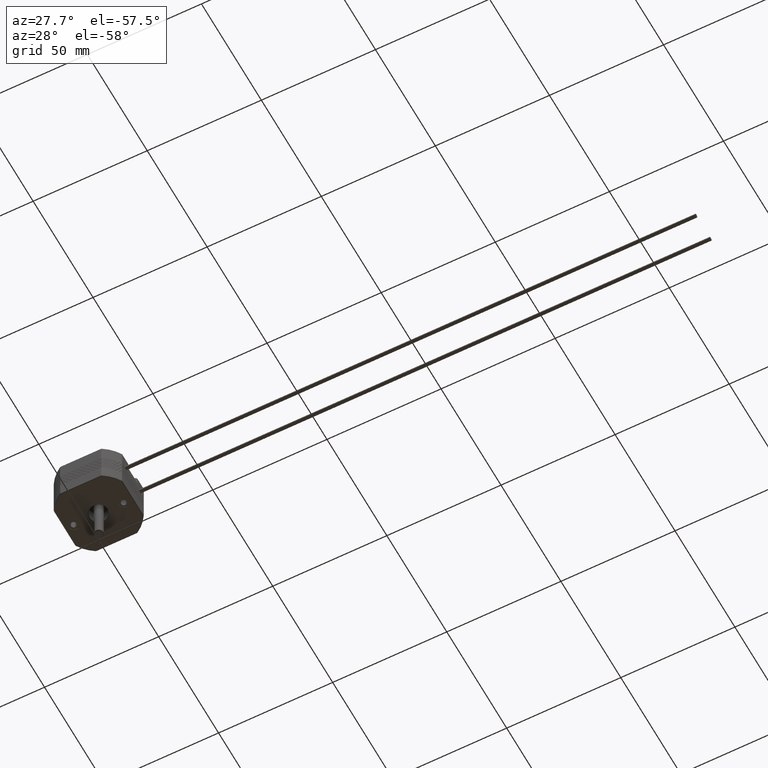
[diagram: clean part render]
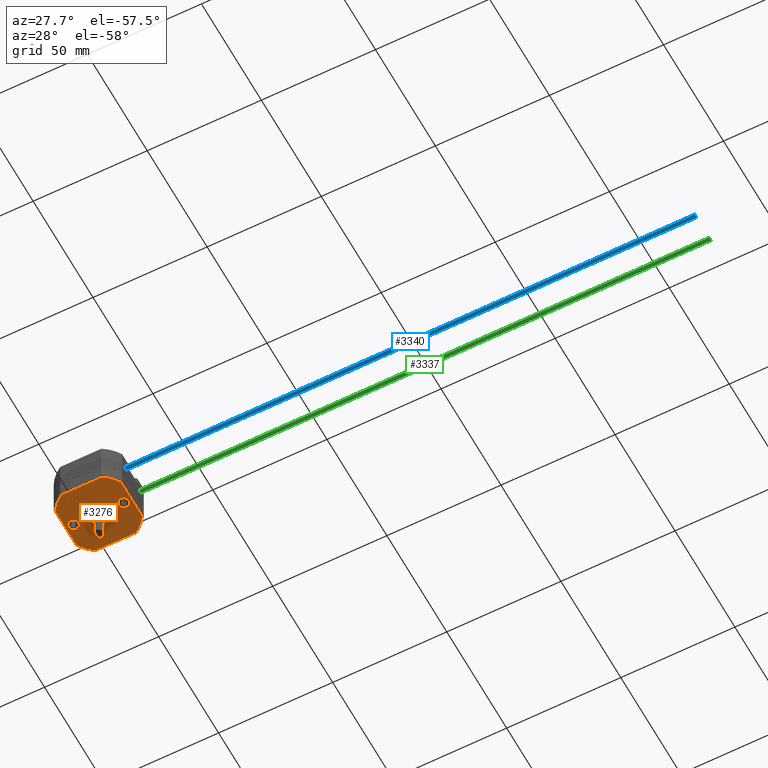
[diagram: same view with three faces highlighted in distinct colors, each labeled with its STEP entity id]
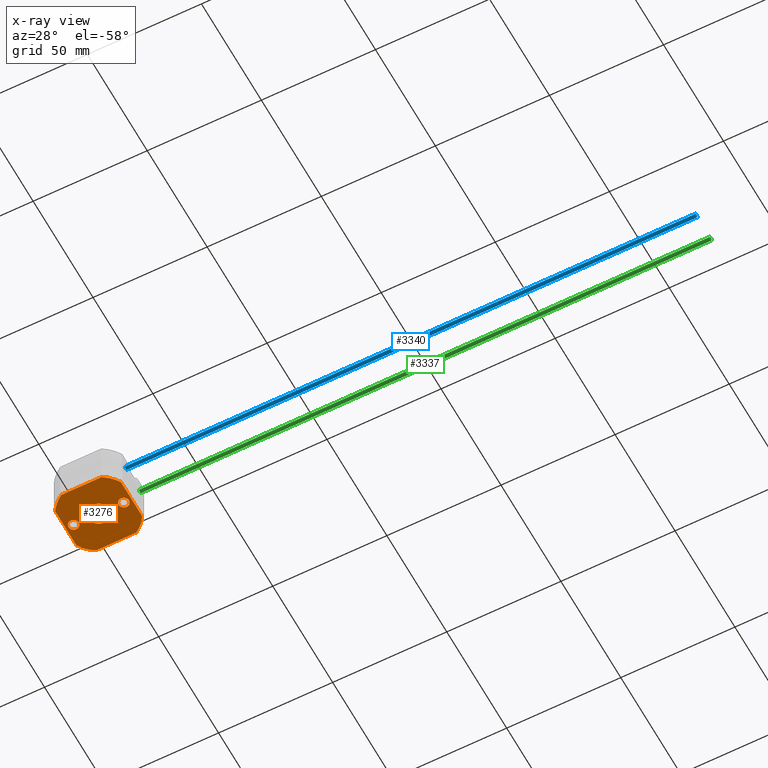
[diagram: x-ray of the same camera — body ghosted, the three highlighted faces saturated]
A machine part, auxiliary view with three faces highlighted in distinct colors.
The next image is the same camera in x-ray (body ghosted, the three faces saturated) — at least one of them is partly hidden behind the body in this view.
Their STEP definitions:

[orange] entity #3276 — the highlighted planar face has unit normal (-0, -0, 1).
#333=LINE('',#5922,#499);
#334=LINE('',#5926,#500);
#335=LINE('',#5930,#501);
#336=LINE('',#5934,#502);
#499=VECTOR('',#4842,1000.);
#500=VECTOR('',#4845,1000.);
#501=VECTOR('',#4848,1000.);
#502=VECTOR('',#4851,1000.);
#600=PLANE('',#4092);
#971=ORIENTED_EDGE('',*,*,#1747,.T.);
#972=ORIENTED_EDGE('',*,*,#1748,.T.);
#973=ORIENTED_EDGE('',*,*,#1749,.T.);
#974=ORIENTED_EDGE('',*,*,#1750,.T.);
#975=ORIENTED_EDGE('',*,*,#1751,.T.);
#976=ORIENTED_EDGE('',*,*,#1752,.T.);
#977=ORIENTED_EDGE('',*,*,#1753,.T.);
#978=ORIENTED_EDGE('',*,*,#1754,.T.);
#979=ORIENTED_EDGE('',*,*,#1755,.T.);
#980=ORIENTED_EDGE('',*,*,#1756,.T.);
#981=ORIENTED_EDGE('',*,*,#1757,.T.);
#1747=EDGE_CURVE('',#2145,#2145,#2413,.T.);
#1748=EDGE_CURVE('',#2146,#2146,#2414,.T.);
#1749=EDGE_CURVE('',#2147,#2147,#2415,.T.);
#1750=EDGE_CURVE('',#2148,#2149,#2416,.F.);
#1751=EDGE_CURVE('',#2149,#2150,#333,.F.);
#1752=EDGE_CURVE('',#2150,#2151,#2417,.F.);
#1753=EDGE_CURVE('',#2151,#2152,#334,.F.);
#1754=EDGE_CURVE('',#2152,#2153,#2418,.F.);
#1755=EDGE_CURVE('',#2153,#2154,#335,.F.);
#1756=EDGE_CURVE('',#2154,#2155,#2419,.F.);
#1757=EDGE_CURVE('',#2155,#2148,#336,.F.);
#2145=VERTEX_POINT('',#5914);
#2146=VERTEX_POINT('',#5916);
#2147=VERTEX_POINT('',#5918);
#2148=VERTEX_POINT('',#5920);
#2149=VERTEX_POINT('',#5921);
#2150=VERTEX_POINT('',#5923);
#2151=VERTEX_POINT('',#5925);
#2152=VERTEX_POINT('',#5927);
#2153=VERTEX_POINT('',#5929);
#2154=VERTEX_POINT('',#5931);
#2155=VERTEX_POINT('',#5933);
#2413=CIRCLE('',#4093,2.25);
#2414=CIRCLE('',#4094,2.25);
#2415=CIRCLE('',#4095,4.6);
#2416=CIRCLE('',#4096,16.9);
#2417=CIRCLE('',#4097,16.9);
#2418=CIRCLE('',#4098,16.9);
#2419=CIRCLE('',#4099,16.9);
#2626=EDGE_LOOP('',(#971));
#2627=EDGE_LOOP('',(#972));
#2628=EDGE_LOOP('',(#973));
#2629=EDGE_LOOP('',(#974,#975,#976,#977,#978,#979,#980,#981));
#2903=FACE_BOUND('',#2626,.T.);
#2904=FACE_BOUND('',#2627,.T.);
#2905=FACE_BOUND('',#2628,.T.);
#2906=FACE_BOUND('',#2629,.T.);
#3276=ADVANCED_FACE('',(#2903,#2904,#2905,#2906),#600,.F.);
#4092=AXIS2_PLACEMENT_3D('',#5912,#4832,#4833);
#4093=AXIS2_PLACEMENT_3D('',#5913,#4834,#4835);
#4094=AXIS2_PLACEMENT_3D('',#5915,#4836,#4837);
#4095=AXIS2_PLACEMENT_3D('',#5917,#4838,#4839);
#4096=AXIS2_PLACEMENT_3D('',#5919,#4840,#4841);
#4097=AXIS2_PLACEMENT_3D('',#5924,#4843,#4844);
#4098=AXIS2_PLACEMENT_3D('',#5928,#4846,#4847);
#4099=AXIS2_PLACEMENT_3D('',#5932,#4849,#4850);
#4832=DIRECTION('',(0.,0.,-1.));
#4833=DIRECTION('',(-1.,0.,0.));
#4834=DIRECTION('',(0.,0.,-1.));
#4835=DIRECTION('',(0.,-1.,0.));
#4836=DIRECTION('',(0.,0.,-1.));
#4837=DIRECTION('',(0.,-1.,0.));
#4838=DIRECTION('',(0.,0.,-1.));
#4839=DIRECTION('',(-1.,0.,0.));
#4840=DIRECTION('',(0.,0.,-1.));
#4841=DIRECTION('',(-1.,0.,0.));
#4842=DIRECTION('',(1.,-5.78241158658936E-17,0.));
#4843=DIRECTION('',(0.,0.,-1.));
#4844=DIRECTION('',(-1.,0.,0.));
#4845=DIRECTION('',(0.,1.,0.));
#4846=DIRECTION('',(0.,0.,-1.));
#4847=DIRECTION('',(-1.,0.,0.));
#4848=DIRECTION('',(-1.,-5.78241158658936E-17,0.));
#4849=DIRECTION('',(0.,0.,-1.));
#4850=DIRECTION('',(-1.,0.,0.));
#4851=DIRECTION('',(0.,-1.,0.));
#5912=CARTESIAN_POINT('',(0.,0.,7.));
#5913=CARTESIAN_POINT('',(2.63290366071811E-15,-11.,7.));
#5914=CARTESIAN_POINT('',(2.63290366071811E-15,-13.25,7.));
#5915=CARTESIAN_POINT('',(3.97997064992273E-15,11.,7.));
#5916=CARTESIAN_POINT('',(3.97997064992273E-15,8.75,7.));
#5917=CARTESIAN_POINT('',(0.,0.,7.));
#5918=CARTESIAN_POINT('',(-4.6,0.,7.));
#5919=CARTESIAN_POINT('',(0.,0.,7.));
#5920=CARTESIAN_POINT('',(14.4,8.84590300647707,7.));
#5921=CARTESIAN_POINT('',(8.84590300647707,14.4,7.));
#5922=CARTESIAN_POINT('',(8.32667268468868E-16,14.4,7.));
#5923=CARTESIAN_POINT('',(-8.84590300647707,14.4,7.));
#5924=CARTESIAN_POINT('',(0.,0.,7.));
#5925=CARTESIAN_POINT('',(-14.4,8.8459030064771,7.));
#5926=CARTESIAN_POINT('',(-14.4,0.,7.));
#5927=CARTESIAN_POINT('',(-14.4,-8.8459030064771,7.));
#5928=CARTESIAN_POINT('',(0.,0.,7.));
#5929=CARTESIAN_POINT('',(-8.84590300647708,-14.4,7.));
#5930=CARTESIAN_POINT('',(8.32667268468867E-16,-14.4,7.));
#5931=CARTESIAN_POINT('',(8.84590300647707,-14.4,7.));
#5932=CARTESIAN_POINT('',(0.,0.,7.));
#5933=CARTESIAN_POINT('',(14.4,-8.84590300647707,7.));
#5934=CARTESIAN_POINT('',(14.4,0.,7.));

[blue] entity #3340 — the highlighted cylindrical surface (bore or boss wall) has radius 0.8 mm, axis along (-1, 0, -0).
#1184=ORIENTED_EDGE('',*,*,#1837,.T.);
#1185=ORIENTED_EDGE('',*,*,#1838,.F.);
#1837=EDGE_CURVE('',#2200,#2200,#2477,.T.);
#1838=EDGE_CURVE('',#2201,#2201,#2478,.T.);
#2200=VERTEX_POINT('',#6139);
#2201=VERTEX_POINT('',#6141);
#2477=CIRCLE('',#4231,0.8);
#2478=CIRCLE('',#4232,0.8);
#2717=EDGE_LOOP('',(#1184));
#2718=EDGE_LOOP('',(#1185));
#2994=FACE_BOUND('',#2717,.T.);
#2995=FACE_BOUND('',#2718,.T.);
#3159=CYLINDRICAL_SURFACE('',#4230,0.8);
#3340=ADVANCED_FACE('',(#2994,#2995),#3159,.T.);
#4230=AXIS2_PLACEMENT_3D('',#6137,#5132,#5133);
#4231=AXIS2_PLACEMENT_3D('',#6138,#5134,#5135);
#4232=AXIS2_PLACEMENT_3D('',#6140,#5136,#5137);
#5132=DIRECTION('',(0.,0.,-1.));
#5133=DIRECTION('',(-1.,0.,0.));
#5134=DIRECTION('',(0.,0.,-1.));
#5135=DIRECTION('',(1.,0.,0.));
#5136=DIRECTION('',(0.,0.,-1.));
#5137=DIRECTION('',(1.,0.,0.));
#6137=CARTESIAN_POINT('',(-6.,0.,250.));
#6138=CARTESIAN_POINT('',(-6.,0.,250.));
#6139=CARTESIAN_POINT('',(-5.2,0.,250.));
#6140=CARTESIAN_POINT('',(-6.,0.,0.));
#6141=CARTESIAN_POINT('',(-5.2,0.,0.));

[green] entity #3337 — the highlighted cylindrical surface (bore or boss wall) has radius 0.8 mm, axis along (-1, 0, -0).
#1180=ORIENTED_EDGE('',*,*,#1835,.T.);
#1181=ORIENTED_EDGE('',*,*,#1836,.F.);
#1835=EDGE_CURVE('',#2198,#2198,#2475,.T.);
#1836=EDGE_CURVE('',#2199,#2199,#2476,.T.);
#2198=VERTEX_POINT('',#6132);
#2199=VERTEX_POINT('',#6134);
#2475=CIRCLE('',#4226,0.8);
#2476=CIRCLE('',#4227,0.8);
#2713=EDGE_LOOP('',(#1180));
#2714=EDGE_LOOP('',(#1181));
#2990=FACE_BOUND('',#2713,.T.);
#2991=FACE_BOUND('',#2714,.T.);
#3158=CYLINDRICAL_SURFACE('',#4225,0.8);
#3337=ADVANCED_FACE('',(#2990,#2991),#3158,.T.);
#4225=AXIS2_PLACEMENT_3D('',#6130,#5122,#5123);
#4226=AXIS2_PLACEMENT_3D('',#6131,#5124,#5125);
#4227=AXIS2_PLACEMENT_3D('',#6133,#5126,#5127);
#5122=DIRECTION('',(0.,0.,-1.));
#5123=DIRECTION('',(-1.,0.,0.));
#5124=DIRECTION('',(0.,0.,-1.));
#5125=DIRECTION('',(1.,0.,0.));
#5126=DIRECTION('',(0.,0.,-1.));
#5127=DIRECTION('',(1.,0.,0.));
#6130=CARTESIAN_POINT('',(6.,-7.34763812293426E-16,250.));
#6131=CARTESIAN_POINT('',(6.,-7.34763812293426E-16,250.));
#6132=CARTESIAN_POINT('',(6.8,-7.34763812293426E-16,250.));
#6133=CARTESIAN_POINT('',(6.,-7.34763812293426E-16,0.));
#6134=CARTESIAN_POINT('',(6.8,-7.34763812293426E-16,0.));